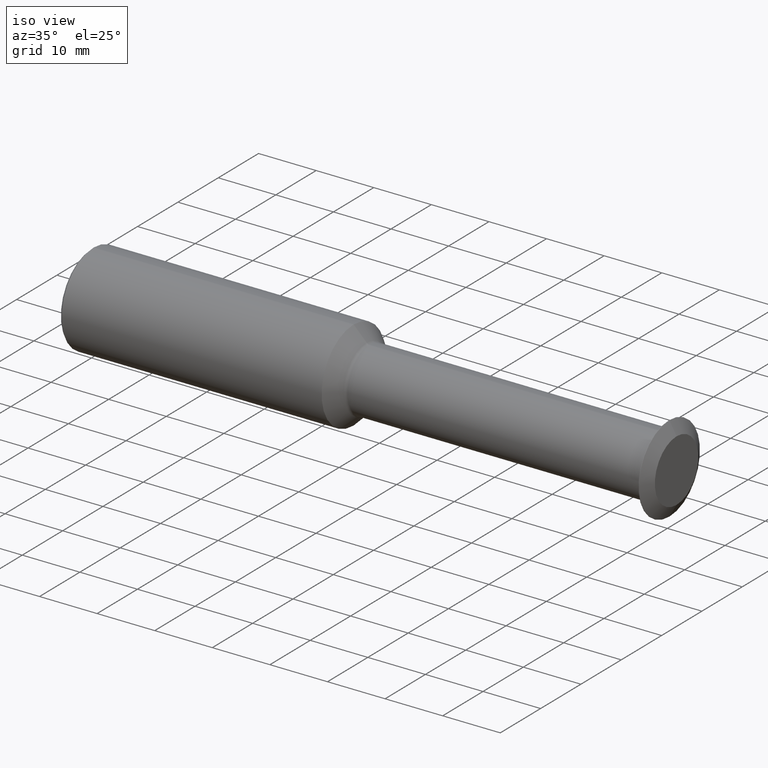
[diagram: clean part render]
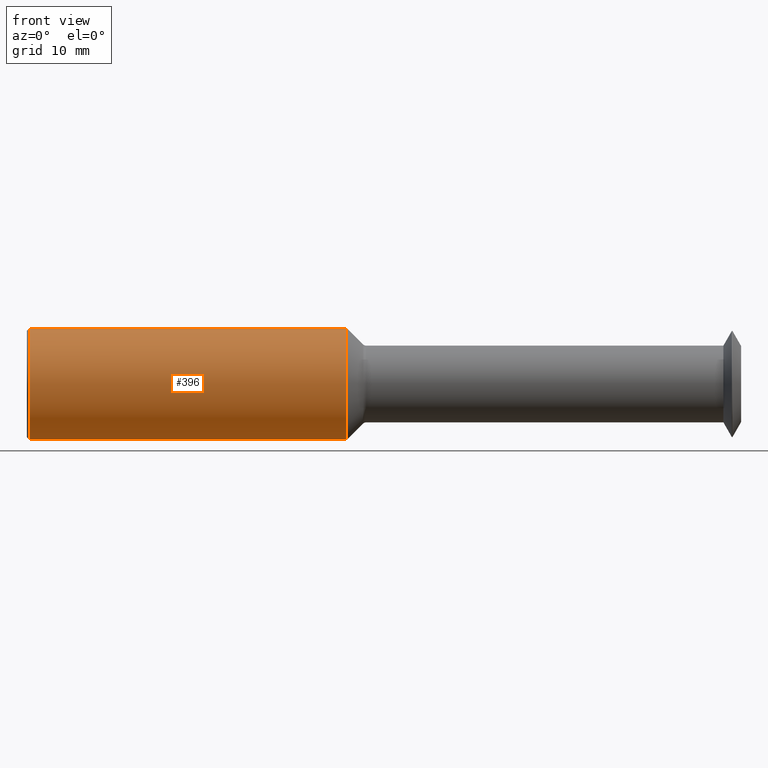
[diagram: tour spotlight — one face highlighted and labeled with its STEP entity id]
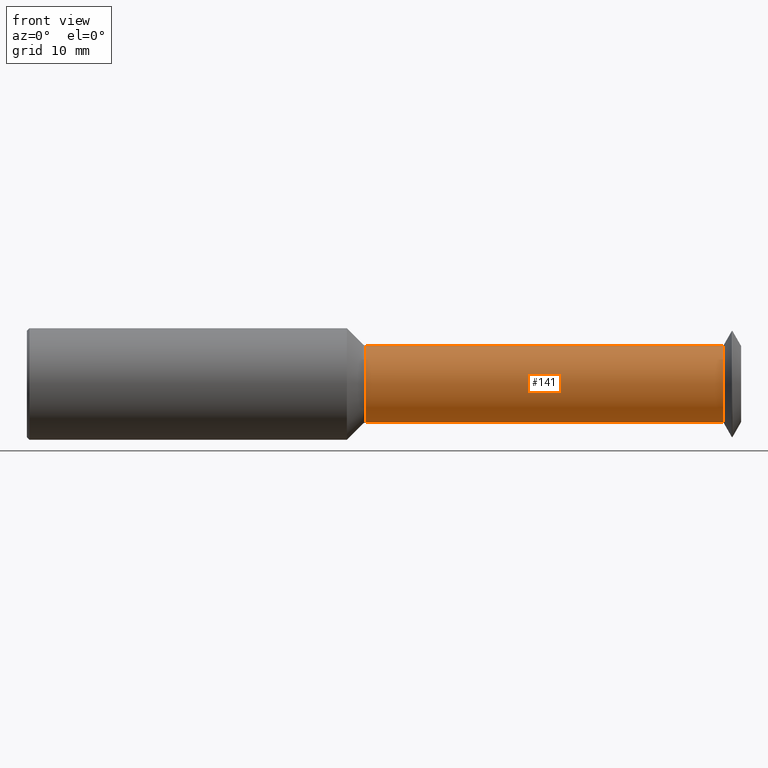
[diagram: tour spotlight — one face highlighted and labeled with its STEP entity id]
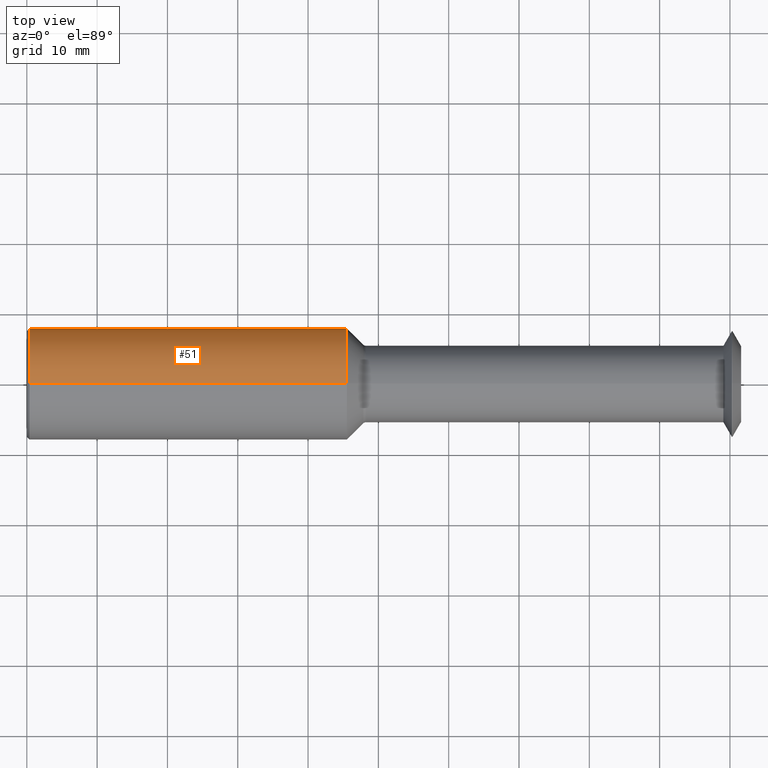
[diagram: tour spotlight — one face highlighted and labeled with its STEP entity id]
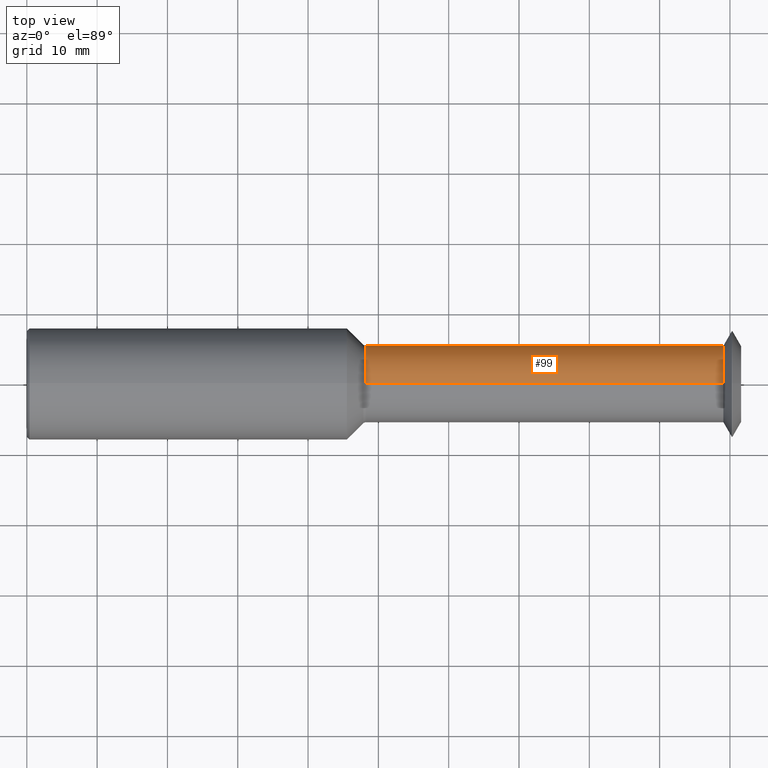
[diagram: tour spotlight — one face highlighted and labeled with its STEP entity id]
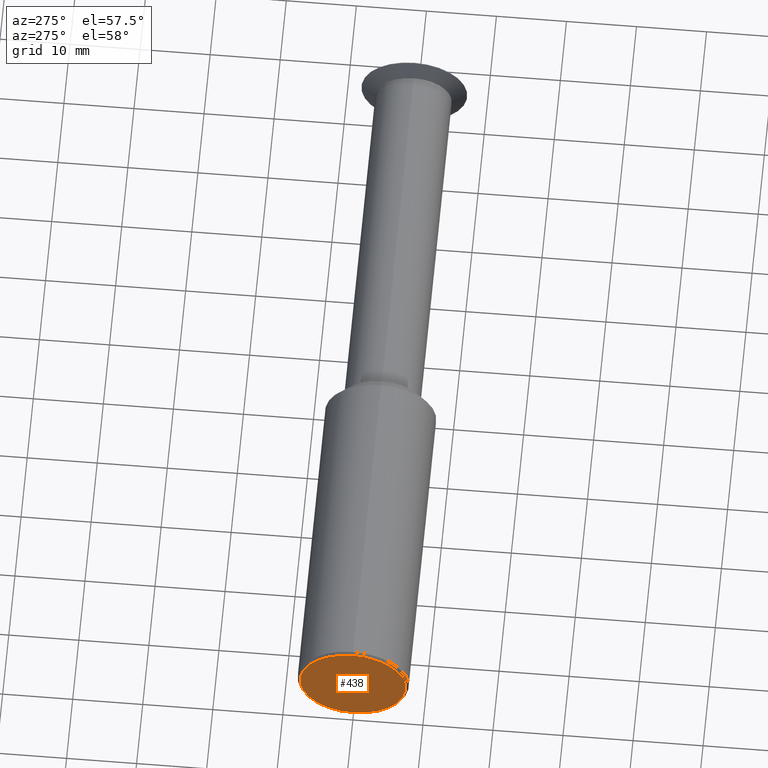
[diagram: tour spotlight — one face highlighted and labeled with its STEP entity id]
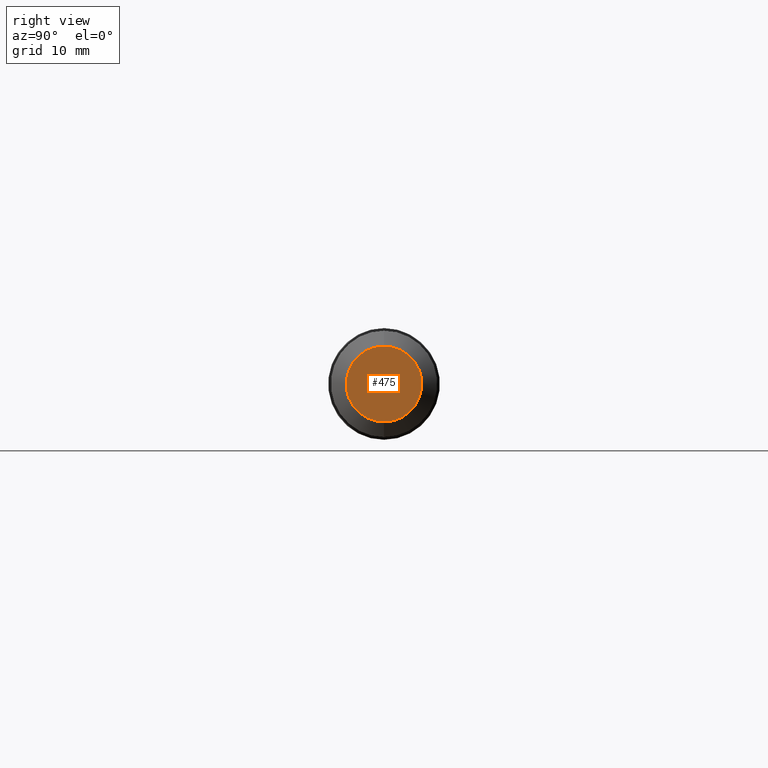
[diagram: tour spotlight — one face highlighted and labeled with its STEP entity id]
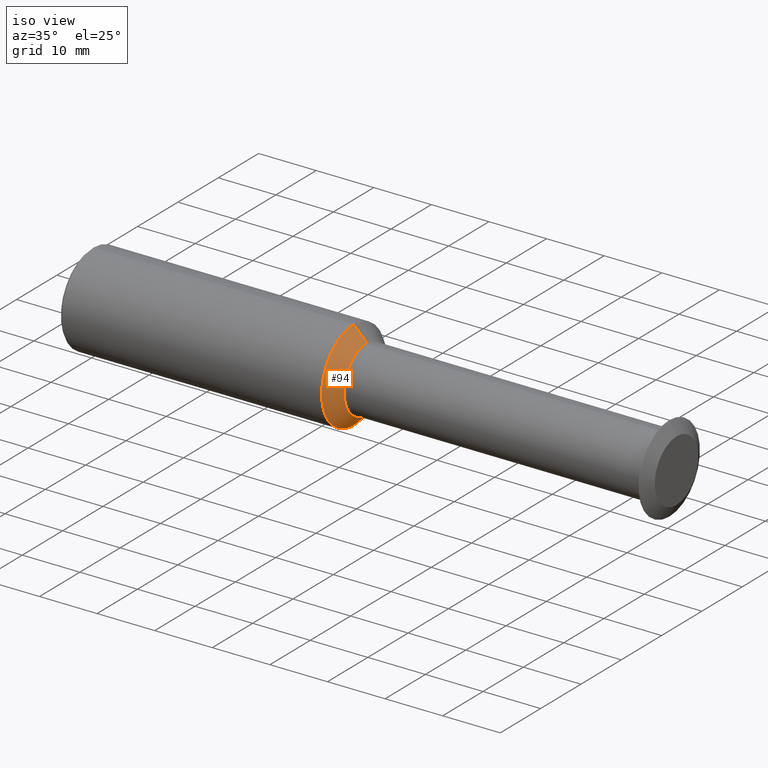
[diagram: tour spotlight — one face highlighted and labeled with its STEP entity id]
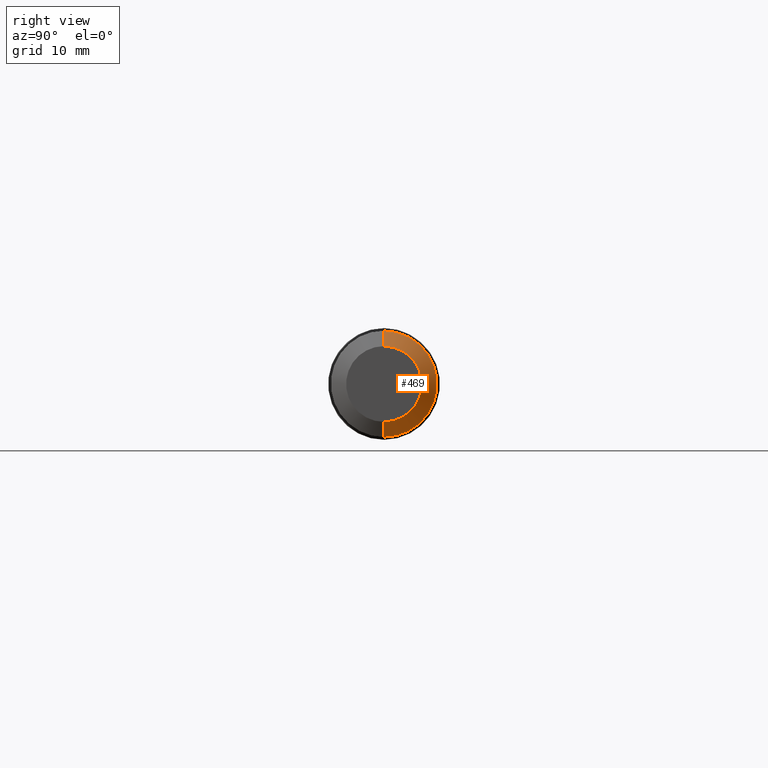
[diagram: tour spotlight — one face highlighted and labeled with its STEP entity id]
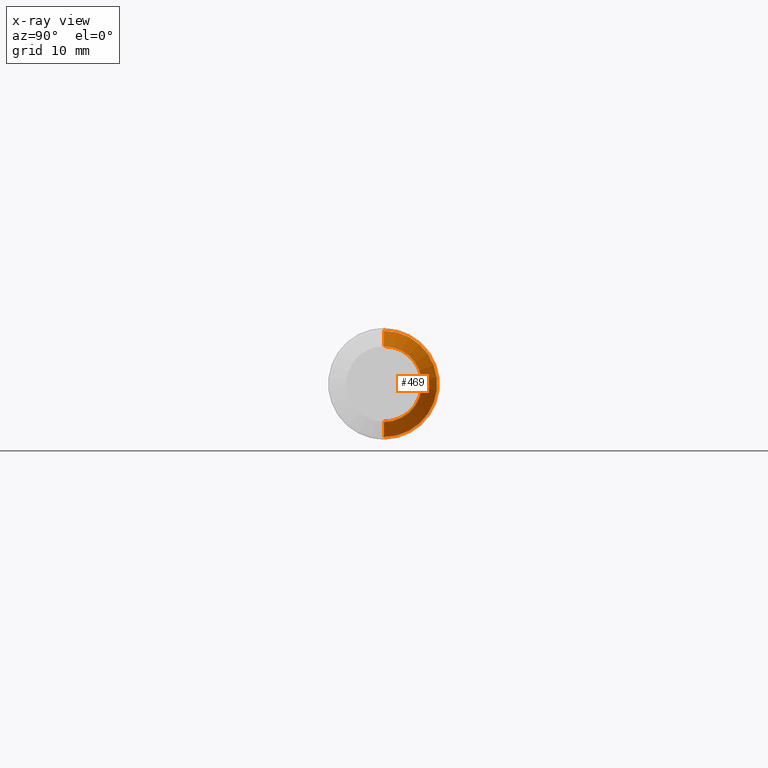
[diagram: x-ray of the same camera — body ghosted, this tour face saturated]
A machine part: a face-by-face anatomy tour. The part has 18 B-rep faces; the first image is the clean iso view, then the 8 largest visible faces are spotlighted one at a time (largest first), each with its STEP entity span.

Face 1 — front view, entity #396. In plain terms, the highlighted cylindrical surface (partial cylindrical patch) has radius 7.9337 mm, axis along (-1, -0, -0).
Definition (entity closure, byte-faithful):
#3 = CARTESIAN_POINT ( 'NONE',  ( 1.792084553538009439, 0.0000000000000000000, 0.0000000000000000000 ) ) ;
#14 = EDGE_CURVE ( 'NONE', #370, #381, #327, .T. ) ;
#32 = CYLINDRICAL_SURFACE ( 'NONE', #131, 0.3123500000000000165 ) ;
#37 = CIRCLE ( 'NONE', #235, 0.3123500000000000165 ) ;
#50 = EDGE_CURVE ( 'NONE', #381, #402, #501, .T. ) ;
#65 = CARTESIAN_POINT ( 'NONE',  ( 0.0000000000000000000, 0.0000000000000000000, 0.0000000000000000000 ) ) ;
#91 = EDGE_CURVE ( 'NONE', #402, #356, #37, .T. ) ;
#122 = EDGE_CURVE ( 'NONE', #370, #356, #319, .T. ) ;
#131 = AXIS2_PLACEMENT_3D ( 'NONE', #65, #439, #224 ) ;
#155 = ORIENTED_EDGE ( 'NONE', *, *, #91, .T. ) ;
#160 = CARTESIAN_POINT ( 'NONE',  ( 1.792084553538009439, 0.0000000000000000000, 0.3123500000000000165 ) ) ;
#173 = ORIENTED_EDGE ( 'NONE', *, *, #122, .F. ) ;
#178 = DIRECTION ( 'NONE',  ( 0.0000000000000000000, 0.0000000000000000000, 1.000000000000000000 ) ) ;
#186 = DIRECTION ( 'NONE',  ( -1.000000000000000000, -0.0000000000000000000, -0.0000000000000000000 ) ) ;
#199 = AXIS2_PLACEMENT_3D ( 'NONE', #3, #293, #178 ) ;
#203 = FACE_OUTER_BOUND ( 'NONE', #436, .T. ) ;
#224 = DIRECTION ( 'NONE',  ( 0.0000000000000000000, 0.0000000000000000000, 1.000000000000000000 ) ) ;
#226 = CARTESIAN_POINT ( 'NONE',  ( 0.0000000000000000000, 3.825184277136757839E-17, -0.3123500000000000165 ) ) ;
#235 = AXIS2_PLACEMENT_3D ( 'NONE', #237, #468, #369 ) ;
#237 = CARTESIAN_POINT ( 'NONE',  ( 0.01500000000000011394, 0.0000000000000000000, 0.0000000000000000000 ) ) ;
#245 = DIRECTION ( 'NONE',  ( -1.000000000000000000, -0.0000000000000000000, -0.0000000000000000000 ) ) ;
#293 = DIRECTION ( 'NONE',  ( -1.000000000000000000, -0.0000000000000000000, -0.0000000000000000000 ) ) ;
#311 = CARTESIAN_POINT ( 'NONE',  ( 0.01500000000000011394, 0.0000000000000000000, 0.3123500000000000165 ) ) ;
#319 = LINE ( 'NONE', #226, #433 ) ;
#327 = CIRCLE ( 'NONE', #199, 0.3123500000000000165 ) ;
#346 = CARTESIAN_POINT ( 'NONE',  ( 0.01500000000000011394, 3.825184277136757839E-17, -0.3123500000000000165 ) ) ;
#356 = VERTEX_POINT ( 'NONE', #346 ) ;
#364 = ORIENTED_EDGE ( 'NONE', *, *, #50, .T. ) ;
#369 = DIRECTION ( 'NONE',  ( 0.0000000000000000000, 0.0000000000000000000, -1.000000000000000000 ) ) ;
#370 = VERTEX_POINT ( 'NONE', #382 ) ;
#381 = VERTEX_POINT ( 'NONE', #160 ) ;
#382 = CARTESIAN_POINT ( 'NONE',  ( 1.792084553538009439, 3.825184277136757839E-17, -0.3123500000000000165 ) ) ;
#388 = ORIENTED_EDGE ( 'NONE', *, *, #14, .T. ) ;
#396 = ADVANCED_FACE ( 'NONE', ( #203 ), #32, .T. ) ;
#402 = VERTEX_POINT ( 'NONE', #311 ) ;
#403 = VECTOR ( 'NONE', #245, 39.37007874015748143 ) ;
#410 = CARTESIAN_POINT ( 'NONE',  ( 0.0000000000000000000, 0.0000000000000000000, 0.3123500000000000165 ) ) ;
#433 = VECTOR ( 'NONE', #186, 39.37007874015748143 ) ;
#436 = EDGE_LOOP ( 'NONE', ( #173, #388, #364, #155 ) ) ;
#439 = DIRECTION ( 'NONE',  ( -1.000000000000000000, -0.0000000000000000000, -0.0000000000000000000 ) ) ;
#468 = DIRECTION ( 'NONE',  ( 1.000000000000000000, 0.0000000000000000000, 0.0000000000000000000 ) ) ;
#501 = LINE ( 'NONE', #410, #403 ) ;

Face 2 — front view, entity #141. In plain terms, the highlighted cylindrical surface (partial cylindrical patch) has radius 5.461 mm, axis along (-1, -0, -0).
Definition (entity closure, byte-faithful):
#21 = EDGE_CURVE ( 'NONE', #375, #341, #192, .T. ) ;
#29 = AXIS2_PLACEMENT_3D ( 'NONE', #182, #313, #74 ) ;
#33 = EDGE_CURVE ( 'NONE', #97, #375, #324, .T. ) ;
#42 = ORIENTED_EDGE ( 'NONE', *, *, #480, .T. ) ;
#68 = ORIENTED_EDGE ( 'NONE', *, *, #118, .T. ) ;
#74 = DIRECTION ( 'NONE',  ( 0.0000000000000000000, 0.0000000000000000000, 1.000000000000000000 ) ) ;
#76 = ORIENTED_EDGE ( 'NONE', *, *, #33, .F. ) ;
#89 = ORIENTED_EDGE ( 'NONE', *, *, #21, .F. ) ;
#97 = VERTEX_POINT ( 'NONE', #485 ) ;
#101 = DIRECTION ( 'NONE',  ( 0.0000000000000000000, 0.0000000000000000000, 1.000000000000000000 ) ) ;
#118 = EDGE_CURVE ( 'NONE', #97, #279, #488, .T. ) ;
#119 = CARTESIAN_POINT ( 'NONE',  ( 3.900590701688721573, 3.138157422815083488E-17, 0.2149999999999992473 ) ) ;
#130 = DIRECTION ( 'NONE',  ( -1.000000000000000000, -0.0000000000000000000, -0.0000000000000000000 ) ) ;
#141 = ADVANCED_FACE ( 'NONE', ( #333 ), #404, .T. ) ;
#167 = CARTESIAN_POINT ( 'NONE',  ( 0.0000000000000000000, 0.0000000000000000000, 0.2149999999999991362 ) ) ;
#168 = CARTESIAN_POINT ( 'NONE',  ( 1.899789892597337326, 0.0000000000000000000, 0.0000000000000000000 ) ) ;
#169 = LINE ( 'NONE', #167, #270 ) ;
#181 = EDGE_LOOP ( 'NONE', ( #76, #68, #42, #89 ) ) ;
#182 = CARTESIAN_POINT ( 'NONE',  ( 3.900590701688721573, 0.0000000000000000000, 0.0000000000000000000 ) ) ;
#191 = AXIS2_PLACEMENT_3D ( 'NONE', #168, #130, #101 ) ;
#192 = CIRCLE ( 'NONE', #191, 0.2149999999999989975 ) ;
#221 = CARTESIAN_POINT ( 'NONE',  ( 1.899789892597337326, 2.632990618166798327E-17, -0.2149999999999989975 ) ) ;
#238 = VECTOR ( 'NONE', #299, 39.37007874015748143 ) ;
#264 = DIRECTION ( 'NONE',  ( -1.000000000000000000, -0.0000000000000000000, -0.0000000000000000000 ) ) ;
#270 = VECTOR ( 'NONE', #264, 39.37007874015748143 ) ;
#279 = VERTEX_POINT ( 'NONE', #119 ) ;
#299 = DIRECTION ( 'NONE',  ( -1.000000000000000000, -0.0000000000000000000, -0.0000000000000000000 ) ) ;
#312 = AXIS2_PLACEMENT_3D ( 'NONE', #389, #393, #450 ) ;
#313 = DIRECTION ( 'NONE',  ( -1.000000000000000000, -0.0000000000000000000, -0.0000000000000000000 ) ) ;
#324 = LINE ( 'NONE', #361, #238 ) ;
#333 = FACE_OUTER_BOUND ( 'NONE', #181, .T. ) ;
#341 = VERTEX_POINT ( 'NONE', #493 ) ;
#361 = CARTESIAN_POINT ( 'NONE',  ( 0.0000000000000000000, 2.632990618166798943E-17, -0.2149999999999991362 ) ) ;
#375 = VERTEX_POINT ( 'NONE', #221 ) ;
#389 = CARTESIAN_POINT ( 'NONE',  ( 0.0000000000000000000, 0.0000000000000000000, 0.0000000000000000000 ) ) ;
#393 = DIRECTION ( 'NONE',  ( -1.000000000000000000, -0.0000000000000000000, -0.0000000000000000000 ) ) ;
#404 = CYLINDRICAL_SURFACE ( 'NONE', #312, 0.2149999999999991362 ) ;
#450 = DIRECTION ( 'NONE',  ( 0.0000000000000000000, 0.0000000000000000000, 1.000000000000000000 ) ) ;
#480 = EDGE_CURVE ( 'NONE', #279, #341, #169, .T. ) ;
#485 = CARTESIAN_POINT ( 'NONE',  ( 3.900590701688721573, 0.0000000000000000000, -0.2149999999999992473 ) ) ;
#488 = CIRCLE ( 'NONE', #29, 0.2149999999999992473 ) ;
#493 = CARTESIAN_POINT ( 'NONE',  ( 1.899789892597337326, 0.0000000000000000000, 0.2149999999999989975 ) ) ;

Face 3 — top view, entity #51. In plain terms, the highlighted cylindrical surface (partial cylindrical patch) has radius 7.9337 mm, axis along (-1, -0, -0).
Definition (entity closure, byte-faithful):
#11 = CIRCLE ( 'NONE', #211, 0.3123500000000000165 ) ;
#27 = ORIENTED_EDGE ( 'NONE', *, *, #61, .T. ) ;
#48 = ORIENTED_EDGE ( 'NONE', *, *, #50, .F. ) ;
#50 = EDGE_CURVE ( 'NONE', #381, #402, #501, .T. ) ;
#51 = ADVANCED_FACE ( 'NONE', ( #106 ), #236, .T. ) ;
#61 = EDGE_CURVE ( 'NONE', #381, #370, #11, .T. ) ;
#73 = AXIS2_PLACEMENT_3D ( 'NONE', #107, #121, #159 ) ;
#83 = EDGE_LOOP ( 'NONE', ( #27, #383, #371, #48 ) ) ;
#106 = FACE_OUTER_BOUND ( 'NONE', #83, .T. ) ;
#107 = CARTESIAN_POINT ( 'NONE',  ( 0.01500000000000011394, 0.0000000000000000000, 0.0000000000000000000 ) ) ;
#121 = DIRECTION ( 'NONE',  ( 1.000000000000000000, 0.0000000000000000000, 0.0000000000000000000 ) ) ;
#122 = EDGE_CURVE ( 'NONE', #370, #356, #319, .T. ) ;
#136 = DIRECTION ( 'NONE',  ( -1.000000000000000000, -0.0000000000000000000, -0.0000000000000000000 ) ) ;
#146 = EDGE_CURVE ( 'NONE', #356, #402, #291, .T. ) ;
#159 = DIRECTION ( 'NONE',  ( 0.0000000000000000000, 0.0000000000000000000, -1.000000000000000000 ) ) ;
#160 = CARTESIAN_POINT ( 'NONE',  ( 1.792084553538009439, 0.0000000000000000000, 0.3123500000000000165 ) ) ;
#186 = DIRECTION ( 'NONE',  ( -1.000000000000000000, -0.0000000000000000000, -0.0000000000000000000 ) ) ;
#204 = DIRECTION ( 'NONE',  ( -1.000000000000000000, -0.0000000000000000000, -0.0000000000000000000 ) ) ;
#211 = AXIS2_PLACEMENT_3D ( 'NONE', #440, #204, #335 ) ;
#226 = CARTESIAN_POINT ( 'NONE',  ( 0.0000000000000000000, 3.825184277136757839E-17, -0.3123500000000000165 ) ) ;
#236 = CYLINDRICAL_SURFACE ( 'NONE', #325, 0.3123500000000000165 ) ;
#245 = DIRECTION ( 'NONE',  ( -1.000000000000000000, -0.0000000000000000000, -0.0000000000000000000 ) ) ;
#291 = CIRCLE ( 'NONE', #73, 0.3123500000000000165 ) ;
#311 = CARTESIAN_POINT ( 'NONE',  ( 0.01500000000000011394, 0.0000000000000000000, 0.3123500000000000165 ) ) ;
#319 = LINE ( 'NONE', #226, #433 ) ;
#325 = AXIS2_PLACEMENT_3D ( 'NONE', #483, #136, #498 ) ;
#335 = DIRECTION ( 'NONE',  ( 0.0000000000000000000, 0.0000000000000000000, 1.000000000000000000 ) ) ;
#346 = CARTESIAN_POINT ( 'NONE',  ( 0.01500000000000011394, 3.825184277136757839E-17, -0.3123500000000000165 ) ) ;
#356 = VERTEX_POINT ( 'NONE', #346 ) ;
#370 = VERTEX_POINT ( 'NONE', #382 ) ;
#371 = ORIENTED_EDGE ( 'NONE', *, *, #146, .T. ) ;
#381 = VERTEX_POINT ( 'NONE', #160 ) ;
#382 = CARTESIAN_POINT ( 'NONE',  ( 1.792084553538009439, 3.825184277136757839E-17, -0.3123500000000000165 ) ) ;
#383 = ORIENTED_EDGE ( 'NONE', *, *, #122, .T. ) ;
#402 = VERTEX_POINT ( 'NONE', #311 ) ;
#403 = VECTOR ( 'NONE', #245, 39.37007874015748143 ) ;
#410 = CARTESIAN_POINT ( 'NONE',  ( 0.0000000000000000000, 0.0000000000000000000, 0.3123500000000000165 ) ) ;
#433 = VECTOR ( 'NONE', #186, 39.37007874015748143 ) ;
#440 = CARTESIAN_POINT ( 'NONE',  ( 1.792084553538009439, 0.0000000000000000000, 0.0000000000000000000 ) ) ;
#483 = CARTESIAN_POINT ( 'NONE',  ( 0.0000000000000000000, 0.0000000000000000000, 0.0000000000000000000 ) ) ;
#498 = DIRECTION ( 'NONE',  ( 0.0000000000000000000, 0.0000000000000000000, 1.000000000000000000 ) ) ;
#501 = LINE ( 'NONE', #410, #403 ) ;

Face 4 — top view, entity #99. In plain terms, the highlighted cylindrical surface (partial cylindrical patch) has radius 5.461 mm, axis along (-1, -0, -0).
Definition (entity closure, byte-faithful):
#5 = ORIENTED_EDGE ( 'NONE', *, *, #110, .F. ) ;
#8 = ORIENTED_EDGE ( 'NONE', *, *, #407, .T. ) ;
#13 = CIRCLE ( 'NONE', #41, 0.2149999999999989975 ) ;
#31 = DIRECTION ( 'NONE',  ( 0.0000000000000000000, 0.0000000000000000000, 1.000000000000000000 ) ) ;
#33 = EDGE_CURVE ( 'NONE', #97, #375, #324, .T. ) ;
#41 = AXIS2_PLACEMENT_3D ( 'NONE', #274, #429, #31 ) ;
#58 = DIRECTION ( 'NONE',  ( 0.0000000000000000000, 0.0000000000000000000, 1.000000000000000000 ) ) ;
#66 = FACE_OUTER_BOUND ( 'NONE', #231, .T. ) ;
#97 = VERTEX_POINT ( 'NONE', #485 ) ;
#99 = ADVANCED_FACE ( 'NONE', ( #66 ), #350, .T. ) ;
#110 = EDGE_CURVE ( 'NONE', #341, #375, #13, .T. ) ;
#119 = CARTESIAN_POINT ( 'NONE',  ( 3.900590701688721573, 3.138157422815083488E-17, 0.2149999999999992473 ) ) ;
#167 = CARTESIAN_POINT ( 'NONE',  ( 0.0000000000000000000, 0.0000000000000000000, 0.2149999999999991362 ) ) ;
#169 = LINE ( 'NONE', #167, #270 ) ;
#208 = CARTESIAN_POINT ( 'NONE',  ( 0.0000000000000000000, 0.0000000000000000000, 0.0000000000000000000 ) ) ;
#221 = CARTESIAN_POINT ( 'NONE',  ( 1.899789892597337326, 2.632990618166798327E-17, -0.2149999999999989975 ) ) ;
#231 = EDGE_LOOP ( 'NONE', ( #8, #459, #5, #332 ) ) ;
#238 = VECTOR ( 'NONE', #299, 39.37007874015748143 ) ;
#264 = DIRECTION ( 'NONE',  ( -1.000000000000000000, -0.0000000000000000000, -0.0000000000000000000 ) ) ;
#270 = VECTOR ( 'NONE', #264, 39.37007874015748143 ) ;
#274 = CARTESIAN_POINT ( 'NONE',  ( 1.899789892597337326, 0.0000000000000000000, 0.0000000000000000000 ) ) ;
#275 = AXIS2_PLACEMENT_3D ( 'NONE', #208, #365, #58 ) ;
#279 = VERTEX_POINT ( 'NONE', #119 ) ;
#299 = DIRECTION ( 'NONE',  ( -1.000000000000000000, -0.0000000000000000000, -0.0000000000000000000 ) ) ;
#324 = LINE ( 'NONE', #361, #238 ) ;
#332 = ORIENTED_EDGE ( 'NONE', *, *, #480, .F. ) ;
#341 = VERTEX_POINT ( 'NONE', #493 ) ;
#342 = AXIS2_PLACEMENT_3D ( 'NONE', #343, #447, #415 ) ;
#343 = CARTESIAN_POINT ( 'NONE',  ( 3.900590701688721573, 0.0000000000000000000, 0.0000000000000000000 ) ) ;
#350 = CYLINDRICAL_SURFACE ( 'NONE', #275, 0.2149999999999991362 ) ;
#361 = CARTESIAN_POINT ( 'NONE',  ( 0.0000000000000000000, 2.632990618166798943E-17, -0.2149999999999991362 ) ) ;
#365 = DIRECTION ( 'NONE',  ( -1.000000000000000000, -0.0000000000000000000, -0.0000000000000000000 ) ) ;
#375 = VERTEX_POINT ( 'NONE', #221 ) ;
#407 = EDGE_CURVE ( 'NONE', #279, #97, #477, .T. ) ;
#415 = DIRECTION ( 'NONE',  ( 0.0000000000000000000, 0.0000000000000000000, 1.000000000000000000 ) ) ;
#429 = DIRECTION ( 'NONE',  ( -1.000000000000000000, -0.0000000000000000000, -0.0000000000000000000 ) ) ;
#447 = DIRECTION ( 'NONE',  ( -1.000000000000000000, -0.0000000000000000000, -0.0000000000000000000 ) ) ;
#459 = ORIENTED_EDGE ( 'NONE', *, *, #33, .T. ) ;
#477 = CIRCLE ( 'NONE', #342, 0.2149999999999992473 ) ;
#480 = EDGE_CURVE ( 'NONE', #279, #341, #169, .T. ) ;
#485 = CARTESIAN_POINT ( 'NONE',  ( 3.900590701688721573, 0.0000000000000000000, -0.2149999999999992473 ) ) ;
#493 = CARTESIAN_POINT ( 'NONE',  ( 1.899789892597337326, 0.0000000000000000000, 0.2149999999999989975 ) ) ;

Face 5 — auxiliary view, entity #438. In plain terms, the highlighted planar face has unit normal (1, 0, 0).
Definition (entity closure, byte-faithful):
#12 = VERTEX_POINT ( 'NONE', #296 ) ;
#30 = EDGE_CURVE ( 'NONE', #12, #147, #491, .T. ) ;
#79 = CARTESIAN_POINT ( 'NONE',  ( 0.0000000000000000000, 3.733335767200705936E-17, 0.2973500000000000587 ) ) ;
#109 = ORIENTED_EDGE ( 'NONE', *, *, #30, .T. ) ;
#124 = AXIS2_PLACEMENT_3D ( 'NONE', #349, #345, #445 ) ;
#147 = VERTEX_POINT ( 'NONE', #79 ) ;
#175 = EDGE_CURVE ( 'NONE', #147, #12, #289, .T. ) ;
#289 = CIRCLE ( 'NONE', #318, 0.2973500000000000587 ) ;
#296 = CARTESIAN_POINT ( 'NONE',  ( 0.0000000000000000000, 0.0000000000000000000, -0.2973500000000000587 ) ) ;
#297 = DIRECTION ( 'NONE',  ( -1.000000000000000000, -0.0000000000000000000, -0.0000000000000000000 ) ) ;
#318 = AXIS2_PLACEMENT_3D ( 'NONE', #385, #451, #391 ) ;
#323 = ORIENTED_EDGE ( 'NONE', *, *, #175, .T. ) ;
#336 = AXIS2_PLACEMENT_3D ( 'NONE', #473, #297, #406 ) ;
#338 = PLANE ( 'NONE',  #124 ) ;
#345 = DIRECTION ( 'NONE',  ( 1.000000000000000000, 0.0000000000000000000, 0.0000000000000000000 ) ) ;
#349 = CARTESIAN_POINT ( 'NONE',  ( 0.0000000000000000000, 0.0000000000000000000, 0.0000000000000000000 ) ) ;
#385 = CARTESIAN_POINT ( 'NONE',  ( 0.0000000000000000000, 0.0000000000000000000, 0.0000000000000000000 ) ) ;
#391 = DIRECTION ( 'NONE',  ( 0.0000000000000000000, 0.0000000000000000000, -1.000000000000000000 ) ) ;
#406 = DIRECTION ( 'NONE',  ( 0.0000000000000000000, 0.0000000000000000000, -1.000000000000000000 ) ) ;
#438 = ADVANCED_FACE ( 'NONE', ( #444 ), #338, .F. ) ;
#444 = FACE_OUTER_BOUND ( 'NONE', #467, .T. ) ;
#445 = DIRECTION ( 'NONE',  ( 0.0000000000000000000, 0.0000000000000000000, -1.000000000000000000 ) ) ;
#451 = DIRECTION ( 'NONE',  ( -1.000000000000000000, -0.0000000000000000000, -0.0000000000000000000 ) ) ;
#467 = EDGE_LOOP ( 'NONE', ( #109, #323 ) ) ;
#473 = CARTESIAN_POINT ( 'NONE',  ( 0.0000000000000000000, 0.0000000000000000000, 0.0000000000000000000 ) ) ;
#491 = CIRCLE ( 'NONE', #336, 0.2973500000000000587 ) ;

Face 6 — right view, entity #475. In plain terms, the highlighted planar face has unit normal (-1, 0, -0).
Definition (entity closure, byte-faithful):
#36 = CIRCLE ( 'NONE', #432, 0.2119999999999992446 ) ;
#40 = VERTEX_POINT ( 'NONE', #128 ) ;
#43 = DIRECTION ( 'NONE',  ( 0.0000000000000000000, 0.0000000000000000000, 1.000000000000000000 ) ) ;
#63 = AXIS2_PLACEMENT_3D ( 'NONE', #368, #133, #330 ) ;
#77 = DIRECTION ( 'NONE',  ( -1.000000000000000000, -0.0000000000000000000, -0.0000000000000000000 ) ) ;
#81 = VERTEX_POINT ( 'NONE', #90 ) ;
#90 = CARTESIAN_POINT ( 'NONE',  ( 4.000000000000000000, 3.119787720827873230E-17, -0.2119999999999992446 ) ) ;
#120 = EDGE_CURVE ( 'NONE', #81, #40, #188, .T. ) ;
#128 = CARTESIAN_POINT ( 'NONE',  ( 4.000000000000000000, 0.0000000000000000000, 0.2119999999999992446 ) ) ;
#133 = DIRECTION ( 'NONE',  ( -1.000000000000000000, 0.0000000000000000000, -0.0000000000000000000 ) ) ;
#151 = PLANE ( 'NONE',  #63 ) ;
#156 = CARTESIAN_POINT ( 'NONE',  ( 4.000000000000000000, 0.0000000000000000000, 0.0000000000000000000 ) ) ;
#183 = ORIENTED_EDGE ( 'NONE', *, *, #295, .F. ) ;
#188 = CIRCLE ( 'NONE', #286, 0.2119999999999992446 ) ;
#286 = AXIS2_PLACEMENT_3D ( 'NONE', #156, #495, #378 ) ;
#295 = EDGE_CURVE ( 'NONE', #40, #81, #36, .T. ) ;
#302 = FACE_OUTER_BOUND ( 'NONE', #497, .T. ) ;
#330 = DIRECTION ( 'NONE',  ( -0.0000000000000000000, 0.0000000000000000000, 1.000000000000000000 ) ) ;
#368 = CARTESIAN_POINT ( 'NONE',  ( 4.000000000000000000, 0.2119999999999992446, 0.0000000000000000000 ) ) ;
#378 = DIRECTION ( 'NONE',  ( 0.0000000000000000000, 0.0000000000000000000, 1.000000000000000000 ) ) ;
#399 = ORIENTED_EDGE ( 'NONE', *, *, #120, .F. ) ;
#426 = CARTESIAN_POINT ( 'NONE',  ( 4.000000000000000000, 0.0000000000000000000, 0.0000000000000000000 ) ) ;
#432 = AXIS2_PLACEMENT_3D ( 'NONE', #426, #77, #43 ) ;
#475 = ADVANCED_FACE ( 'NONE', ( #302 ), #151, .F. ) ;
#495 = DIRECTION ( 'NONE',  ( -1.000000000000000000, -0.0000000000000000000, -0.0000000000000000000 ) ) ;
#497 = EDGE_LOOP ( 'NONE', ( #183, #399 ) ) ;

Face 7 — iso view, entity #94. In plain terms, the highlighted conical surface has half-angle 45 deg.
Definition (entity closure, byte-faithful):
#3 = CARTESIAN_POINT ( 'NONE',  ( 1.792084553538009439, 0.0000000000000000000, 0.0000000000000000000 ) ) ;
#14 = EDGE_CURVE ( 'NONE', #370, #381, #327, .T. ) ;
#15 = VECTOR ( 'NONE', #272, 39.37007874015748143 ) ;
#19 = CARTESIAN_POINT ( 'NONE',  ( 1.882112223067673007, 0.0000000000000000000, 0.0000000000000000000 ) ) ;
#38 = VECTOR ( 'NONE', #193, 39.37007874015748143 ) ;
#94 = ADVANCED_FACE ( 'NONE', ( #405 ), #138, .T. ) ;
#127 = EDGE_CURVE ( 'NONE', #490, #370, #129, .T. ) ;
#129 = LINE ( 'NONE', #229, #15 ) ;
#138 = CONICAL_SURFACE ( 'NONE', #249, 0.2223223304703354497, 0.7853981633974538301 ) ;
#160 = CARTESIAN_POINT ( 'NONE',  ( 1.792084553538009439, 0.0000000000000000000, 0.3123500000000000165 ) ) ;
#164 = EDGE_CURVE ( 'NONE', #490, #253, #380, .T. ) ;
#178 = DIRECTION ( 'NONE',  ( 0.0000000000000000000, 0.0000000000000000000, 1.000000000000000000 ) ) ;
#193 = DIRECTION ( 'NONE',  ( -0.7071067811865435759, 0.0000000000000000000, 0.7071067811865514585 ) ) ;
#199 = AXIS2_PLACEMENT_3D ( 'NONE', #3, #293, #178 ) ;
#219 = ORIENTED_EDGE ( 'NONE', *, *, #127, .F. ) ;
#223 = LINE ( 'NONE', #351, #38 ) ;
#229 = CARTESIAN_POINT ( 'NONE',  ( 1.882112223067673007, 2.722663303894763800E-17, -0.2223223304703354497 ) ) ;
#234 = CARTESIAN_POINT ( 'NONE',  ( 1.882112223067673007, 0.0000000000000000000, 0.0000000000000000000 ) ) ;
#241 = DIRECTION ( 'NONE',  ( 0.0000000000000000000, 0.0000000000000000000, 1.000000000000000000 ) ) ;
#243 = DIRECTION ( 'NONE',  ( -1.000000000000000000, -0.0000000000000000000, -0.0000000000000000000 ) ) ;
#249 = AXIS2_PLACEMENT_3D ( 'NONE', #19, #420, #241 ) ;
#253 = VERTEX_POINT ( 'NONE', #352 ) ;
#257 = ORIENTED_EDGE ( 'NONE', *, *, #304, .T. ) ;
#265 = DIRECTION ( 'NONE',  ( 0.0000000000000000000, 0.0000000000000000000, 1.000000000000000000 ) ) ;
#272 = DIRECTION ( 'NONE',  ( -0.7071067811865435759, 8.659560562354980929E-17, -0.7071067811865514585 ) ) ;
#277 = AXIS2_PLACEMENT_3D ( 'NONE', #234, #243, #265 ) ;
#293 = DIRECTION ( 'NONE',  ( -1.000000000000000000, -0.0000000000000000000, -0.0000000000000000000 ) ) ;
#304 = EDGE_CURVE ( 'NONE', #253, #381, #223, .T. ) ;
#327 = CIRCLE ( 'NONE', #199, 0.3123500000000000165 ) ;
#351 = CARTESIAN_POINT ( 'NONE',  ( 1.882112223067673007, 0.0000000000000000000, 0.2223223304703354497 ) ) ;
#352 = CARTESIAN_POINT ( 'NONE',  ( 1.882112223067673007, 0.0000000000000000000, 0.2223223304703356162 ) ) ;
#370 = VERTEX_POINT ( 'NONE', #382 ) ;
#380 = CIRCLE ( 'NONE', #277, 0.2223223304703354497 ) ;
#381 = VERTEX_POINT ( 'NONE', #160 ) ;
#382 = CARTESIAN_POINT ( 'NONE',  ( 1.792084553538009439, 3.825184277136757839E-17, -0.3123500000000000165 ) ) ;
#405 = FACE_OUTER_BOUND ( 'NONE', #428, .T. ) ;
#420 = DIRECTION ( 'NONE',  ( -1.000000000000000000, -0.0000000000000000000, -0.0000000000000000000 ) ) ;
#428 = EDGE_LOOP ( 'NONE', ( #219, #453, #257, #461 ) ) ;
#453 = ORIENTED_EDGE ( 'NONE', *, *, #164, .T. ) ;
#461 = ORIENTED_EDGE ( 'NONE', *, *, #14, .F. ) ;
#464 = CARTESIAN_POINT ( 'NONE',  ( 1.882112223067673007, 2.722663303894765649E-17, -0.2223223304703356162 ) ) ;
#490 = VERTEX_POINT ( 'NONE', #464 ) ;

Face 8 — right view, entity #469. An x-ray twin of the same camera follows (body ghosted, this face saturated) — the face is partly hidden behind the body. In plain terms, the highlighted conical surface has half-angle 60.15 deg.
Definition (entity closure, byte-faithful):
#6 = CARTESIAN_POINT ( 'NONE',  ( 4.000000000000000000, 0.0000000000000000000, 0.0000000000000000000 ) ) ;
#20 = AXIS2_PLACEMENT_3D ( 'NONE', #6, #258, #126 ) ;
#22 = CARTESIAN_POINT ( 'NONE',  ( 4.000000000000000000, 2.596251214192379353E-17, -0.2119999999999992446 ) ) ;
#36 = CIRCLE ( 'NONE', #432, 0.2119999999999992446 ) ;
#40 = VERTEX_POINT ( 'NONE', #128 ) ;
#43 = DIRECTION ( 'NONE',  ( 0.0000000000000000000, 0.0000000000000000000, 1.000000000000000000 ) ) ;
#69 = DIRECTION ( 'NONE',  ( 0.0000000000000000000, 0.0000000000000000000, 1.000000000000000000 ) ) ;
#77 = DIRECTION ( 'NONE',  ( -1.000000000000000000, -0.0000000000000000000, -0.0000000000000000000 ) ) ;
#81 = VERTEX_POINT ( 'NONE', #90 ) ;
#90 = CARTESIAN_POINT ( 'NONE',  ( 4.000000000000000000, 3.119787720827873230E-17, -0.2119999999999992446 ) ) ;
#115 = LINE ( 'NONE', #22, #143 ) ;
#116 = CARTESIAN_POINT ( 'NONE',  ( 4.000000000000000000, 0.0000000000000000000, 0.2119999999999992446 ) ) ;
#126 = DIRECTION ( 'NONE',  ( 0.0000000000000000000, 0.0000000000000000000, 1.000000000000000000 ) ) ;
#128 = CARTESIAN_POINT ( 'NONE',  ( 4.000000000000000000, 0.0000000000000000000, 0.2119999999999992446 ) ) ;
#143 = VECTOR ( 'NONE', #347, 39.37007874015748143 ) ;
#145 = EDGE_LOOP ( 'NONE', ( #484, #434, #283, #446 ) ) ;
#163 = AXIS2_PLACEMENT_3D ( 'NONE', #374, #205, #69 ) ;
#205 = DIRECTION ( 'NONE',  ( -1.000000000000000000, -0.0000000000000000000, -0.0000000000000000000 ) ) ;
#206 = VERTEX_POINT ( 'NONE', #344 ) ;
#251 = FACE_OUTER_BOUND ( 'NONE', #145, .T. ) ;
#258 = DIRECTION ( 'NONE',  ( -1.000000000000000000, -0.0000000000000000000, -0.0000000000000000000 ) ) ;
#283 = ORIENTED_EDGE ( 'NONE', *, *, #482, .F. ) ;
#295 = EDGE_CURVE ( 'NONE', #40, #81, #36, .T. ) ;
#320 = DIRECTION ( 'NONE',  ( -0.4977310399126251839, 0.0000000000000000000, 0.8673314314075656339 ) ) ;
#329 = LINE ( 'NONE', #116, #358 ) ;
#344 = CARTESIAN_POINT ( 'NONE',  ( 3.950934553538009375, 3.643324227463366491E-17, -0.2974999999999992095 ) ) ;
#347 = DIRECTION ( 'NONE',  ( -0.4977310399126251839, 1.062174661273167376E-16, -0.8673314314075656339 ) ) ;
#358 = VECTOR ( 'NONE', #320, 39.37007874015748143 ) ;
#360 = CONICAL_SURFACE ( 'NONE', #20, 0.2119999999999992446, 1.049815545074574308 ) ;
#372 = CARTESIAN_POINT ( 'NONE',  ( 3.950934553538009375, 0.0000000000000000000, 0.2974999999999992095 ) ) ;
#374 = CARTESIAN_POINT ( 'NONE',  ( 3.950934553538009375, 0.0000000000000000000, 0.0000000000000000000 ) ) ;
#377 = EDGE_CURVE ( 'NONE', #40, #425, #329, .T. ) ;
#392 = CIRCLE ( 'NONE', #163, 0.2974999999999992650 ) ;
#412 = EDGE_CURVE ( 'NONE', #81, #206, #115, .T. ) ;
#425 = VERTEX_POINT ( 'NONE', #372 ) ;
#426 = CARTESIAN_POINT ( 'NONE',  ( 4.000000000000000000, 0.0000000000000000000, 0.0000000000000000000 ) ) ;
#432 = AXIS2_PLACEMENT_3D ( 'NONE', #426, #77, #43 ) ;
#434 = ORIENTED_EDGE ( 'NONE', *, *, #412, .T. ) ;
#446 = ORIENTED_EDGE ( 'NONE', *, *, #377, .F. ) ;
#469 = ADVANCED_FACE ( 'NONE', ( #251 ), #360, .T. ) ;
#482 = EDGE_CURVE ( 'NONE', #425, #206, #392, .T. ) ;
#484 = ORIENTED_EDGE ( 'NONE', *, *, #295, .T. ) ;